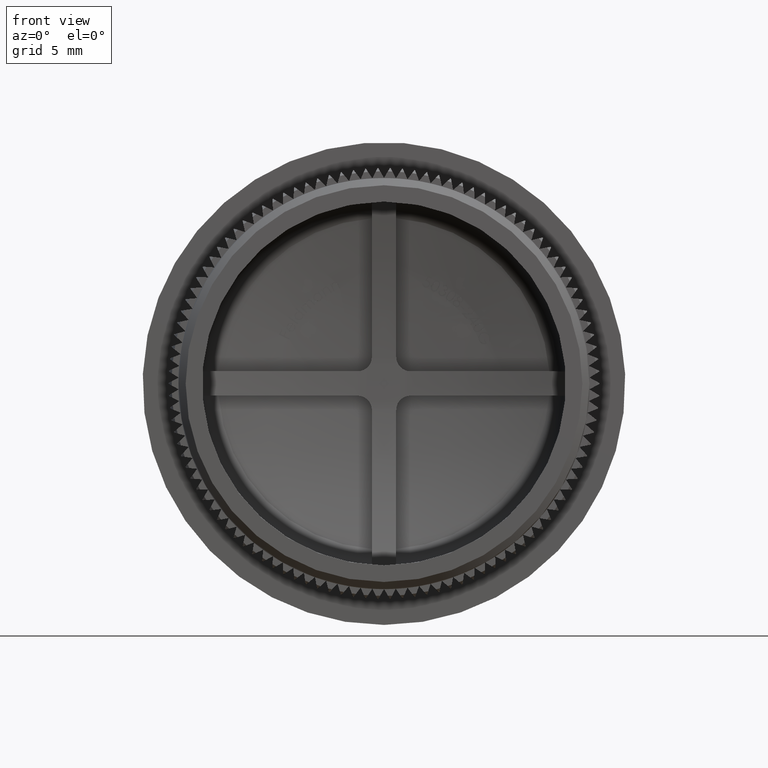
[diagram: clean part render]
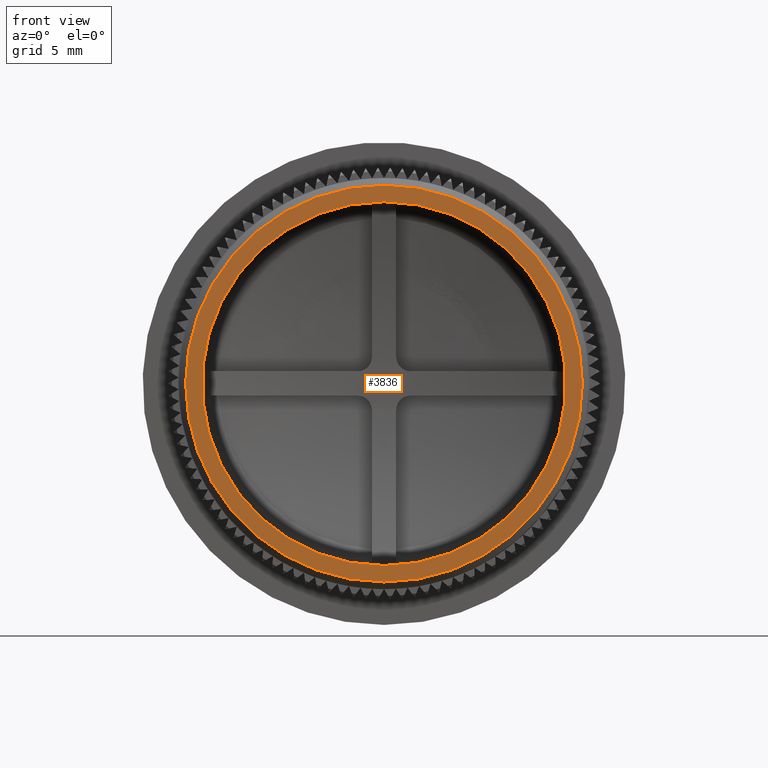
[diagram: same view with one face highlighted and labeled with its STEP entity id]
A machine part, front view. The second image highlights one B-rep face of the part: STEP entity #3836.
In plain terms, the highlighted planar face has unit normal (0, -1, -0).
Its self-contained STEP definition (entity closure, byte-faithful):
#150 = CARTESIAN_POINT ( 'NONE',  ( 0.0000000000000000000, 0.0000000000000000000, -12.69999999999999900 ) ) ;
#344 = AXIS2_PLACEMENT_3D ( 'NONE', #6295, #13844, #20515 ) ;
#3836 = ADVANCED_FACE ( 'NONE', ( #23414, #11954 ), #34311, .T. ) ;
#6295 = CARTESIAN_POINT ( 'NONE',  ( 14.35000000000000000, 0.0000000000000000000, 0.0000000000000000000 ) ) ;
#9037 = EDGE_LOOP ( 'NONE', ( #20558 ) ) ;
#11371 = CARTESIAN_POINT ( 'NONE',  ( 0.0000000000000000000, 0.0000000000000000000, -13.84999999999998700 ) ) ;
#11954 = FACE_OUTER_BOUND ( 'NONE', #18251, .T. ) ;
#13266 = EDGE_CURVE ( 'NONE', #23566, #23566, #23261, .T. ) ;
#13844 = DIRECTION ( 'NONE',  ( 0.0000000000000000000, -1.000000000000000000, -0.0000000000000000000 ) ) ;
#16607 = AXIS2_PLACEMENT_3D ( 'NONE', #17998, #29885, #27444 ) ;
#16730 = DIRECTION ( 'NONE',  ( -0.0000000000000000000, -1.000000000000000000, -0.0000000000000000000 ) ) ;
#17998 = CARTESIAN_POINT ( 'NONE',  ( 0.0000000000000000000, 0.0000000000000000000, 0.0000000000000000000 ) ) ;
#18251 = EDGE_LOOP ( 'NONE', ( #25137 ) ) ;
#20515 = DIRECTION ( 'NONE',  ( 0.0000000000000000000, 0.0000000000000000000, -1.000000000000000000 ) ) ;
#20558 = ORIENTED_EDGE ( 'NONE', *, *, #30753, .F. ) ;
#23261 = CIRCLE ( 'NONE', #16607, 13.84999999999998700 ) ;
#23414 = FACE_BOUND ( 'NONE', #9037, .T. ) ;
#23566 = VERTEX_POINT ( 'NONE', #11371 ) ;
#25010 = AXIS2_PLACEMENT_3D ( 'NONE', #30737, #16730, #36454 ) ;
#25137 = ORIENTED_EDGE ( 'NONE', *, *, #13266, .T. ) ;
#25204 = CIRCLE ( 'NONE', #25010, 12.69999999999999900 ) ;
#27444 = DIRECTION ( 'NONE',  ( 0.0000000000000000000, 0.0000000000000000000, -1.000000000000000000 ) ) ;
#28393 = VERTEX_POINT ( 'NONE', #150 ) ;
#29885 = DIRECTION ( 'NONE',  ( -0.0000000000000000000, -1.000000000000000000, -0.0000000000000000000 ) ) ;
#30737 = CARTESIAN_POINT ( 'NONE',  ( 0.0000000000000000000, 0.0000000000000000000, 0.0000000000000000000 ) ) ;
#30753 = EDGE_CURVE ( 'NONE', #28393, #28393, #25204, .T. ) ;
#34311 = PLANE ( 'NONE',  #344 ) ;
#36454 = DIRECTION ( 'NONE',  ( 0.0000000000000000000, 0.0000000000000000000, -1.000000000000000000 ) ) ;